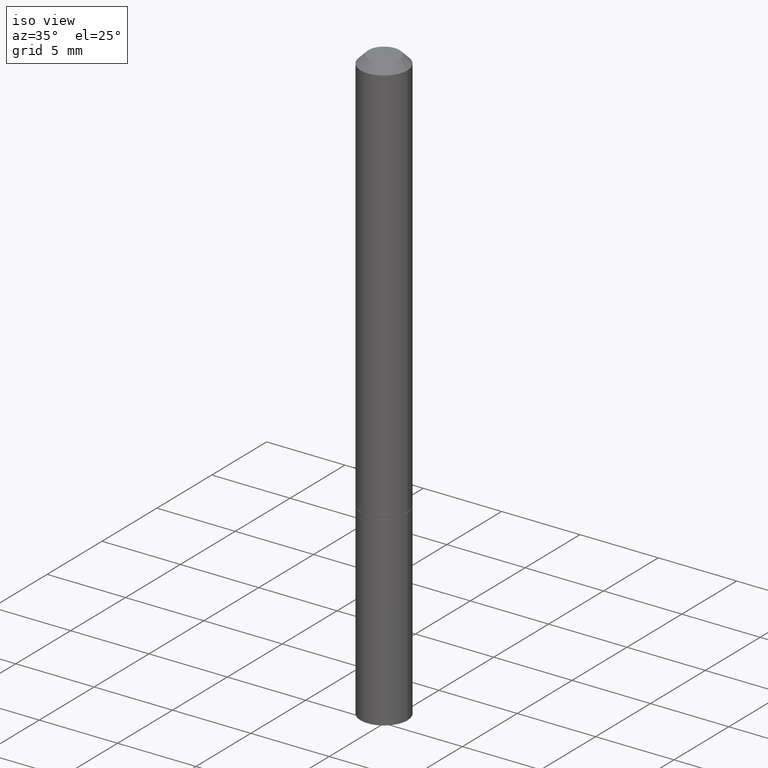
[diagram: clean part render]
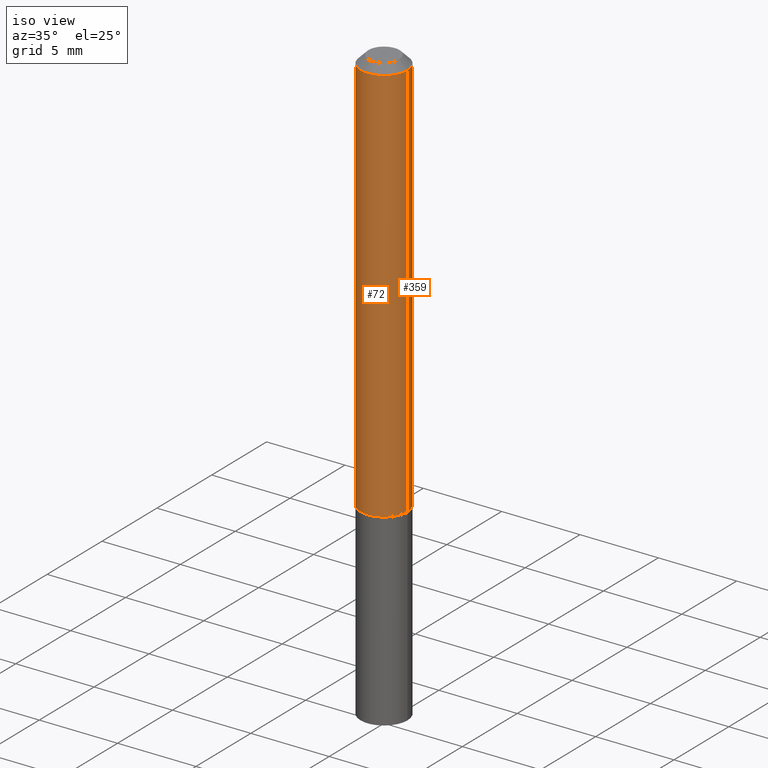
[diagram: same view with one multi-face feature highlighted, each face labeled with its STEP entity id]
A machine part, iso view. The highlighted faces form ONE feature: a constant-radius fillet chain: 2 tangent blend faces with common blend radius 1.4999 mm. The faces share edges in the B-rep.
Their STEP definitions:
[1] entity #359 (Cylinder):
#8 = VECTOR ( 'NONE', #195, 39.37007874015748143 ) ;
#32 = FACE_OUTER_BOUND ( 'NONE', #141, .T. ) ;
#48 = CARTESIAN_POINT ( 'NONE',  ( -0.05904999999999987342, 3.425143193405101922E-16, -0.02000000000000001429 ) ) ;
#57 = CARTESIAN_POINT ( 'NONE',  ( 4.890937612370275786E-31, -6.982962677686296539E-17, -0.02000000000000001429 ) ) ;
#74 = CIRCLE ( 'NONE', #171, 0.05904999999999987342 ) ;
#81 = CARTESIAN_POINT ( 'NONE',  ( -0.05904999999999999832, -1.400708310539532684E-15, -1.022699999999999942 ) ) ;
#86 = CARTESIAN_POINT ( 'NONE',  ( 2.500980948085539022E-29, -3.570737965234884606E-15, -1.022699999999999942 ) ) ;
#103 = AXIS2_PLACEMENT_3D ( 'NONE', #86, #142, #231 ) ;
#119 = DIRECTION ( 'NONE',  ( -2.445468806185136597E-29, 3.491481338843145583E-15, 1.000000000000000000 ) ) ;
#133 = DIRECTION ( 'NONE',  ( -2.445468806185136877E-29, 3.491481338843145188E-15, 1.000000000000000000 ) ) ;
#140 = CARTESIAN_POINT ( 'NONE',  ( 0.000000000000000000, 0.000000000000000000, 0.000000000000000000 ) ) ;
#141 = EDGE_LOOP ( 'NONE', ( #170, #241, #234, #292 ) ) ;
#142 = DIRECTION ( 'NONE',  ( -2.445468806185136597E-29, 3.491481338843145583E-15, 1.000000000000000000 ) ) ;
#143 = VERTEX_POINT ( 'NONE', #81 ) ;
#170 = ORIENTED_EDGE ( 'NONE', *, *, #308, .T. ) ;
#171 = AXIS2_PLACEMENT_3D ( 'NONE', #57, #119, #201 ) ;
#173 = CARTESIAN_POINT ( 'NONE',  ( 0.05904999999999992893, -4.123439461173735397E-16, 2.879382386107496717E-30 ) ) ;
#179 = VERTEX_POINT ( 'NONE', #48 ) ;
#195 = DIRECTION ( 'NONE',  ( -2.445468806185136877E-29, 3.491481338843145188E-15, 1.000000000000000000 ) ) ;
#197 = EDGE_CURVE ( 'NONE', #143, #179, #221, .T. ) ;
#201 = DIRECTION ( 'NONE',  ( 1.000000000000000000, -6.982962677686266711E-15, 0.000000000000000000 ) ) ;
#221 = LINE ( 'NONE', #324, #313 ) ;
#231 = DIRECTION ( 'NONE',  ( 1.000000000000000000, -6.982962677686265133E-15, 0.000000000000000000 ) ) ;
#234 = ORIENTED_EDGE ( 'NONE', *, *, #315, .F. ) ;
#241 = ORIENTED_EDGE ( 'NONE', *, *, #197, .T. ) ;
#248 = CARTESIAN_POINT ( 'NONE',  ( 0.05904999999999999832, -3.983081911352258737E-15, -1.022699999999999942 ) ) ;
#254 = DIRECTION ( 'NONE',  ( 1.000000000000000000, -6.982962677686266711E-15, 4.876176775795935793E-29 ) ) ;
#257 = AXIS2_PLACEMENT_3D ( 'NONE', #140, #281, #254 ) ;
#261 = VERTEX_POINT ( 'NONE', #299 ) ;
#281 = DIRECTION ( 'NONE',  ( -2.445468806185136597E-29, 3.491481338843145583E-15, 1.000000000000000000 ) ) ;
#292 = ORIENTED_EDGE ( 'NONE', *, *, #327, .F. ) ;
#299 = CARTESIAN_POINT ( 'NONE',  ( 0.05904999999999987342, -4.749420335452709831E-16, -0.02000000000000001429 ) ) ;
#308 = EDGE_CURVE ( 'NONE', #319, #143, #321, .T. ) ;
#313 = VECTOR ( 'NONE', #133, 39.37007874015748143 ) ;
#315 = EDGE_CURVE ( 'NONE', #261, #179, #74, .T. ) ;
#319 = VERTEX_POINT ( 'NONE', #248 ) ;
#321 = CIRCLE ( 'NONE', #103, 0.05904999999999999832 ) ;
#324 = CARTESIAN_POINT ( 'NONE',  ( -0.05904999999999992893, 4.195754854663386548E-16, -2.904631170795518389E-30 ) ) ;
#327 = EDGE_CURVE ( 'NONE', #319, #261, #365, .T. ) ;
#359 = ADVANCED_FACE ( 'NONE', ( #32 ), #362, .T. ) ;
#362 = CYLINDRICAL_SURFACE ( 'NONE', #257, 0.05904999999999992893 ) ;
#365 = LINE ( 'NONE', #173, #8 ) ;
[2] entity #72 (Cylinder):
#2 = ORIENTED_EDGE ( 'NONE', *, *, #258, .T. ) ;
#8 = VECTOR ( 'NONE', #195, 39.37007874015748143 ) ;
#45 = ORIENTED_EDGE ( 'NONE', *, *, #327, .T. ) ;
#48 = CARTESIAN_POINT ( 'NONE',  ( -0.05904999999999987342, 3.425143193405101922E-16, -0.02000000000000001429 ) ) ;
#52 = CIRCLE ( 'NONE', #349, 0.05904999999999999832 ) ;
#59 = EDGE_CURVE ( 'NONE', #179, #261, #102, .T. ) ;
#63 = ORIENTED_EDGE ( 'NONE', *, *, #197, .F. ) ;
#65 = AXIS2_PLACEMENT_3D ( 'NONE', #210, #73, #284 ) ;
#72 = ADVANCED_FACE ( 'NONE', ( #180 ), #291, .T. ) ;
#73 = DIRECTION ( 'NONE',  ( -2.445468806185136597E-29, 3.491481338843145583E-15, 1.000000000000000000 ) ) ;
#81 = CARTESIAN_POINT ( 'NONE',  ( -0.05904999999999999832, -1.400708310539532684E-15, -1.022699999999999942 ) ) ;
#101 = ORIENTED_EDGE ( 'NONE', *, *, #59, .F. ) ;
#102 = CIRCLE ( 'NONE', #65, 0.05904999999999987342 ) ;
#116 = AXIS2_PLACEMENT_3D ( 'NONE', #353, #194, #326 ) ;
#133 = DIRECTION ( 'NONE',  ( -2.445468806185136877E-29, 3.491481338843145188E-15, 1.000000000000000000 ) ) ;
#137 = DIRECTION ( 'NONE',  ( 1.000000000000000000, -6.982962677686265133E-15, 0.000000000000000000 ) ) ;
#143 = VERTEX_POINT ( 'NONE', #81 ) ;
#173 = CARTESIAN_POINT ( 'NONE',  ( 0.05904999999999992893, -4.123439461173735397E-16, 2.879382386107496717E-30 ) ) ;
#179 = VERTEX_POINT ( 'NONE', #48 ) ;
#180 = FACE_OUTER_BOUND ( 'NONE', #256, .T. ) ;
#189 = CARTESIAN_POINT ( 'NONE',  ( 2.500980948085539022E-29, -3.570737965234884606E-15, -1.022699999999999942 ) ) ;
#194 = DIRECTION ( 'NONE',  ( -2.445468806185136597E-29, 3.491481338843145583E-15, 1.000000000000000000 ) ) ;
#195 = DIRECTION ( 'NONE',  ( -2.445468806185136877E-29, 3.491481338843145188E-15, 1.000000000000000000 ) ) ;
#197 = EDGE_CURVE ( 'NONE', #143, #179, #221, .T. ) ;
#210 = CARTESIAN_POINT ( 'NONE',  ( 4.890937612370275786E-31, -6.982962677686296539E-17, -0.02000000000000001429 ) ) ;
#221 = LINE ( 'NONE', #324, #313 ) ;
#248 = CARTESIAN_POINT ( 'NONE',  ( 0.05904999999999999832, -3.983081911352258737E-15, -1.022699999999999942 ) ) ;
#256 = EDGE_LOOP ( 'NONE', ( #63, #2, #45, #101 ) ) ;
#258 = EDGE_CURVE ( 'NONE', #143, #319, #52, .T. ) ;
#261 = VERTEX_POINT ( 'NONE', #299 ) ;
#284 = DIRECTION ( 'NONE',  ( 1.000000000000000000, -6.982962677686266711E-15, 0.000000000000000000 ) ) ;
#291 = CYLINDRICAL_SURFACE ( 'NONE', #116, 0.05904999999999992893 ) ;
#299 = CARTESIAN_POINT ( 'NONE',  ( 0.05904999999999987342, -4.749420335452709831E-16, -0.02000000000000001429 ) ) ;
#313 = VECTOR ( 'NONE', #133, 39.37007874015748143 ) ;
#319 = VERTEX_POINT ( 'NONE', #248 ) ;
#324 = CARTESIAN_POINT ( 'NONE',  ( -0.05904999999999992893, 4.195754854663386548E-16, -2.904631170795518389E-30 ) ) ;
#326 = DIRECTION ( 'NONE',  ( 1.000000000000000000, -6.982962677686266711E-15, 4.876176775795935793E-29 ) ) ;
#327 = EDGE_CURVE ( 'NONE', #319, #261, #365, .T. ) ;
#328 = DIRECTION ( 'NONE',  ( -2.445468806185136597E-29, 3.491481338843145583E-15, 1.000000000000000000 ) ) ;
#349 = AXIS2_PLACEMENT_3D ( 'NONE', #189, #328, #137 ) ;
#353 = CARTESIAN_POINT ( 'NONE',  ( 0.000000000000000000, 0.000000000000000000, 0.000000000000000000 ) ) ;
#365 = LINE ( 'NONE', #173, #8 ) ;